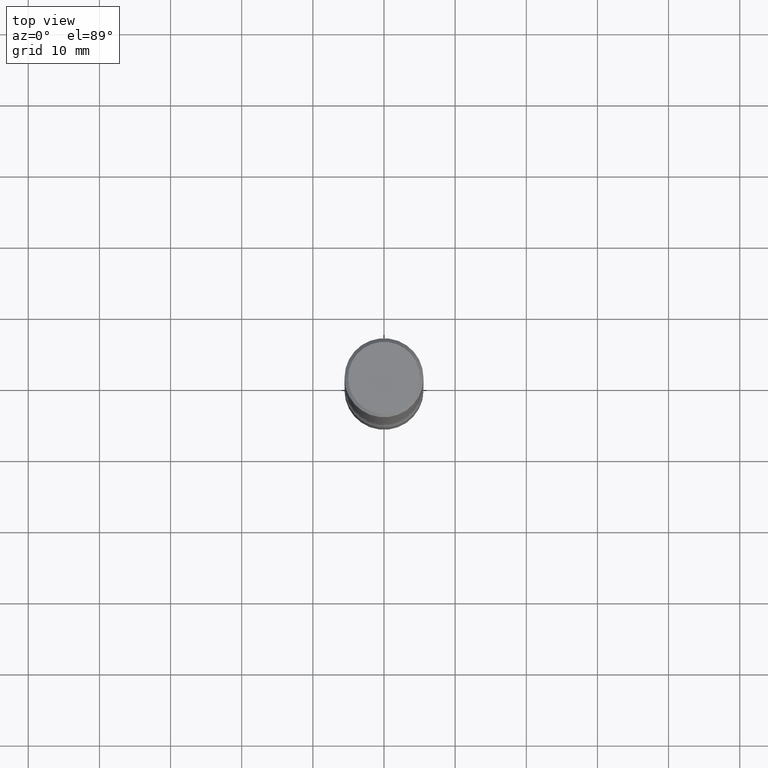
[diagram: clean part render]
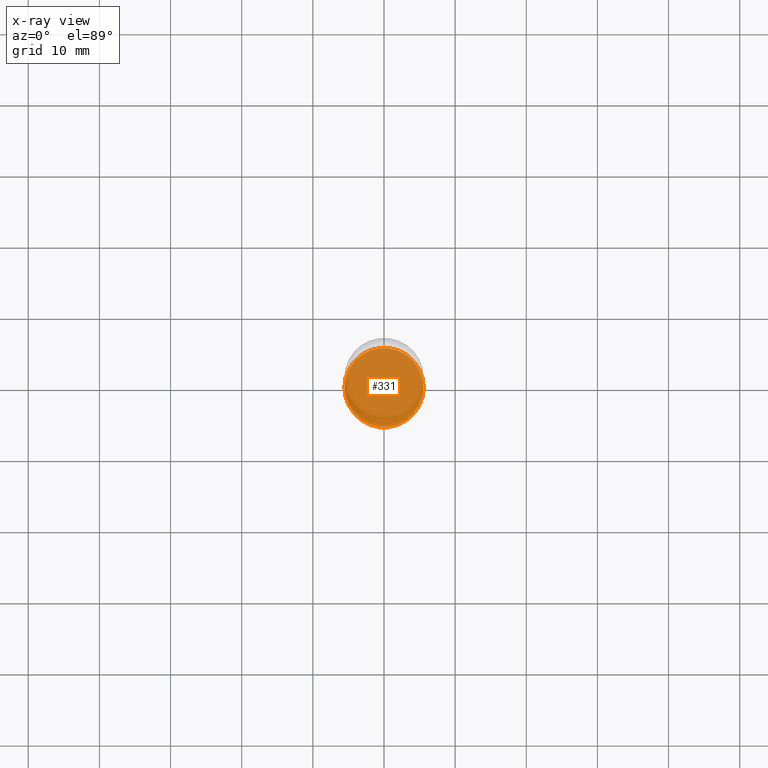
[diagram: x-ray — body ghosted, one internal face saturated and labeled with its STEP entity id]
A machine part, top view, then the same camera in x-ray: the body is ghosted and one INTERNAL B-rep face — a face not visible from any outside direction — is saturated and labeled: STEP entity #331.
In plain terms, the highlighted planar face has unit normal (0, -0, -1).
Its self-contained STEP definition (entity closure, byte-faithful):
#14 = CARTESIAN_POINT ( 'NONE',  ( 7.642090019328550744E-29, -1.091087918388482645E-14, -3.124999999999999112 ) ) ;
#52 = CARTESIAN_POINT ( 'NONE',  ( 0.2187500000000001943, -1.243840226962869808E-14, -3.124999999999999112 ) ) ;
#55 = EDGE_LOOP ( 'NONE', ( #295, #535 ) ) ;
#58 = AXIS2_PLACEMENT_3D ( 'NONE', #194, #541, #281 ) ;
#62 = DIRECTION ( 'NONE',  ( 1.000000000000000000, -6.982962677686265922E-15, 0.000000000000000000 ) ) ;
#67 = CIRCLE ( 'NONE', #58, 0.2187500000000001943 ) ;
#133 = DIRECTION ( 'NONE',  ( -1.000000000000000000, 6.982962677686265922E-15, -4.876176775795935793E-29 ) ) ;
#194 = CARTESIAN_POINT ( 'NONE',  ( 7.642090019328550744E-29, -1.091087918388482645E-14, -3.124999999999999112 ) ) ;
#201 = AXIS2_PLACEMENT_3D ( 'NONE', #272, #522, #133 ) ;
#232 = VERTEX_POINT ( 'NONE', #404 ) ;
#272 = CARTESIAN_POINT ( 'NONE',  ( 1.309248789957701946E-28, -3.105599201986939029E-15, -3.124999999999999112 ) ) ;
#281 = DIRECTION ( 'NONE',  ( 1.000000000000000000, -6.982962677686265922E-15, 0.000000000000000000 ) ) ;
#288 = DIRECTION ( 'NONE',  ( -2.445468806185136597E-29, 3.491481338843145583E-15, 1.000000000000000000 ) ) ;
#289 = FACE_OUTER_BOUND ( 'NONE', #55, .T. ) ;
#295 = ORIENTED_EDGE ( 'NONE', *, *, #301, .T. ) ;
#301 = EDGE_CURVE ( 'NONE', #512, #232, #67, .T. ) ;
#306 = AXIS2_PLACEMENT_3D ( 'NONE', #14, #288, #62 ) ;
#331 = ADVANCED_FACE ( 'NONE', ( #289 ), #509, .F. ) ;
#404 = CARTESIAN_POINT ( 'NONE',  ( -0.2187500000000001943, -1.085790392511215873E-14, -3.124999999999999112 ) ) ;
#509 = PLANE ( 'NONE',  #201 ) ;
#512 = VERTEX_POINT ( 'NONE', #52 ) ;
#522 = DIRECTION ( 'NONE',  ( 2.438088387897960049E-29, -3.491481338843145188E-15, -1.000000000000000000 ) ) ;
#535 = ORIENTED_EDGE ( 'NONE', *, *, #544, .T. ) ;
#541 = DIRECTION ( 'NONE',  ( -2.445468806185136597E-29, 3.491481338843145583E-15, 1.000000000000000000 ) ) ;
#544 = EDGE_CURVE ( 'NONE', #232, #512, #547, .T. ) ;
#547 = CIRCLE ( 'NONE', #306, 0.2187500000000001943 ) ;